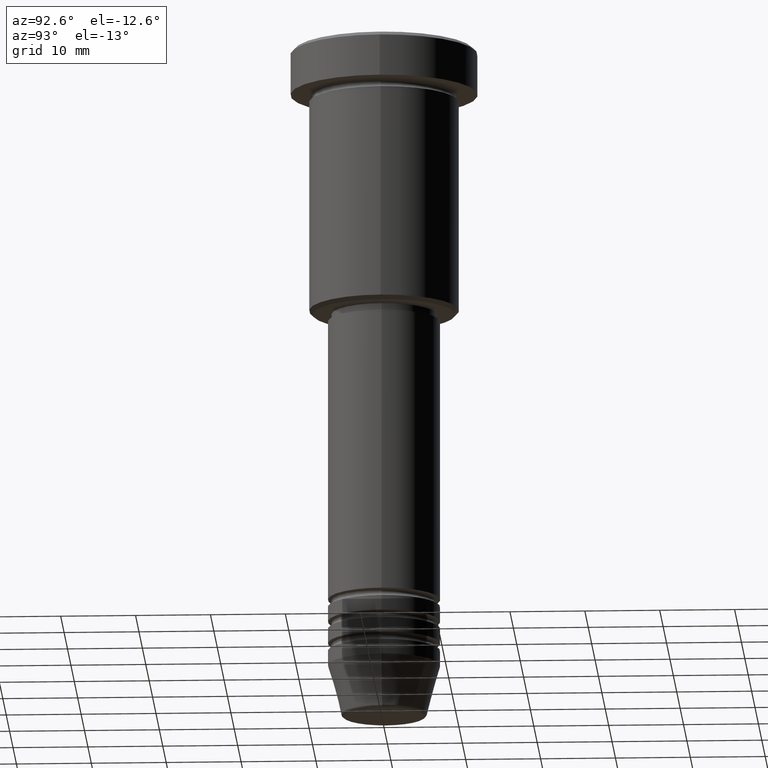
[diagram: clean part render]
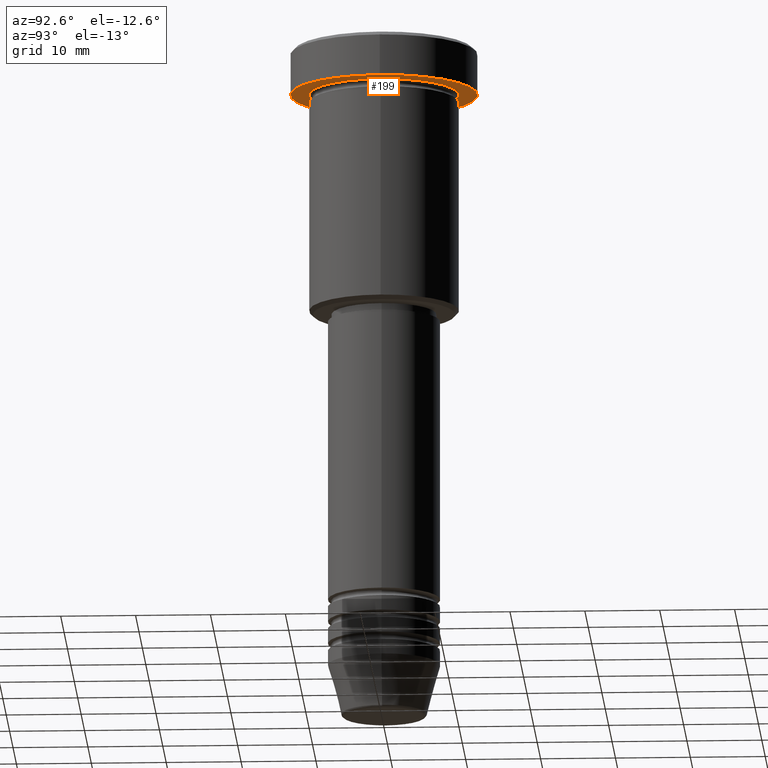
[diagram: same view with one face highlighted and labeled with its STEP entity id]
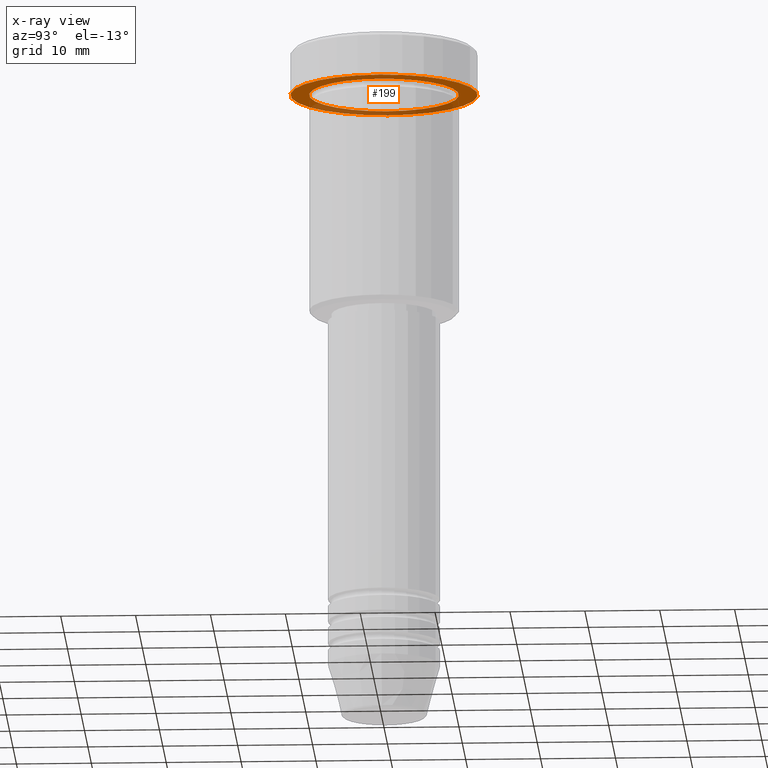
[diagram: x-ray of the same camera — body ghosted, the highlighted face saturated]
A machine part, auxiliary view. The second image highlights one B-rep face of the part: STEP entity #199.
The next image is the same camera in x-ray: the body ghosted, the highlighted face saturated — about 31% of this face is hidden behind the body in this view.
In plain terms, the highlighted planar face has unit normal (0, 0, -1).
Its self-contained STEP definition (entity closure, byte-faithful):
#8 = FACE_OUTER_BOUND ( 'NONE', #487, .T. ) ;
#14 = DIRECTION ( 'NONE',  ( -1.000000000000000000, 0.000000000000000000, -0.000000000000000000 ) ) ;
#21 = PLANE ( 'NONE',  #1157 ) ;
#35 = CIRCLE ( 'NONE', #134, 10.00000000000000000 ) ;
#52 = DIRECTION ( 'NONE',  ( 1.000000000000000000, 0.000000000000000000, 0.000000000000000000 ) ) ;
#63 = CARTESIAN_POINT ( 'NONE',  ( -12.50000000000000000, 1.530808498934191521E-15, -5.999999999999996447 ) ) ;
#134 = AXIS2_PLACEMENT_3D ( 'NONE', #340, #1062, #243 ) ;
#199 = ADVANCED_FACE ( 'NONE', ( #552, #8 ), #21, .T. ) ;
#243 = DIRECTION ( 'NONE',  ( -1.000000000000000000, 0.000000000000000000, 0.000000000000000000 ) ) ;
#269 = ORIENTED_EDGE ( 'NONE', *, *, #535, .F. ) ;
#284 = CARTESIAN_POINT ( 'NONE',  ( 0.000000000000000000, 0.000000000000000000, -5.999999999999996447 ) ) ;
#313 = ORIENTED_EDGE ( 'NONE', *, *, #607, .F. ) ;
#340 = CARTESIAN_POINT ( 'NONE',  ( 0.000000000000000000, 0.000000000000000000, -5.999999999999996447 ) ) ;
#402 = AXIS2_PLACEMENT_3D ( 'NONE', #284, #639, #708 ) ;
#458 = VERTEX_POINT ( 'NONE', #1072 ) ;
#463 = CARTESIAN_POINT ( 'NONE',  ( 10.00000000000000000, 1.224646799147353256E-15, -5.999999999999996447 ) ) ;
#487 = EDGE_LOOP ( 'NONE', ( #269, #313 ) ) ;
#516 = ORIENTED_EDGE ( 'NONE', *, *, #613, .T. ) ;
#526 = VERTEX_POINT ( 'NONE', #63 ) ;
#535 = EDGE_CURVE ( 'NONE', #458, #526, #1142, .T. ) ;
#552 = FACE_BOUND ( 'NONE', #892, .T. ) ;
#607 = EDGE_CURVE ( 'NONE', #526, #458, #759, .T. ) ;
#613 = EDGE_CURVE ( 'NONE', #828, #1100, #717, .T. ) ;
#639 = DIRECTION ( 'NONE',  ( -0.000000000000000000, -0.000000000000000000, 1.000000000000000000 ) ) ;
#686 = DIRECTION ( 'NONE',  ( -0.000000000000000000, -0.000000000000000000, 1.000000000000000000 ) ) ;
#708 = DIRECTION ( 'NONE',  ( -1.000000000000000000, 0.000000000000000000, 0.000000000000000000 ) ) ;
#717 = CIRCLE ( 'NONE', #402, 10.00000000000000000 ) ;
#746 = CARTESIAN_POINT ( 'NONE',  ( 0.000000000000000000, 12.50000000000000000, -5.999999999999996447 ) ) ;
#759 = CIRCLE ( 'NONE', #842, 12.50000000000000000 ) ;
#791 = CARTESIAN_POINT ( 'NONE',  ( -10.00000000000000000, 0.000000000000000000, -5.999999999999996447 ) ) ;
#828 = VERTEX_POINT ( 'NONE', #791 ) ;
#842 = AXIS2_PLACEMENT_3D ( 'NONE', #999, #914, #1161 ) ;
#891 = CARTESIAN_POINT ( 'NONE',  ( 0.000000000000000000, 0.000000000000000000, -5.999999999999996447 ) ) ;
#892 = EDGE_LOOP ( 'NONE', ( #516, #1140 ) ) ;
#914 = DIRECTION ( 'NONE',  ( -0.000000000000000000, -0.000000000000000000, 1.000000000000000000 ) ) ;
#935 = AXIS2_PLACEMENT_3D ( 'NONE', #891, #686, #52 ) ;
#999 = CARTESIAN_POINT ( 'NONE',  ( 0.000000000000000000, 0.000000000000000000, -5.999999999999996447 ) ) ;
#1014 = EDGE_CURVE ( 'NONE', #1100, #828, #35, .T. ) ;
#1062 = DIRECTION ( 'NONE',  ( -0.000000000000000000, -0.000000000000000000, 1.000000000000000000 ) ) ;
#1072 = CARTESIAN_POINT ( 'NONE',  ( 12.50000000000000000, 0.000000000000000000, -5.999999999999996447 ) ) ;
#1100 = VERTEX_POINT ( 'NONE', #463 ) ;
#1110 = DIRECTION ( 'NONE',  ( 0.000000000000000000, 0.000000000000000000, -1.000000000000000000 ) ) ;
#1140 = ORIENTED_EDGE ( 'NONE', *, *, #1014, .T. ) ;
#1142 = CIRCLE ( 'NONE', #935, 12.50000000000000000 ) ;
#1157 = AXIS2_PLACEMENT_3D ( 'NONE', #746, #1110, #14 ) ;
#1161 = DIRECTION ( 'NONE',  ( 1.000000000000000000, 0.000000000000000000, 0.000000000000000000 ) ) ;